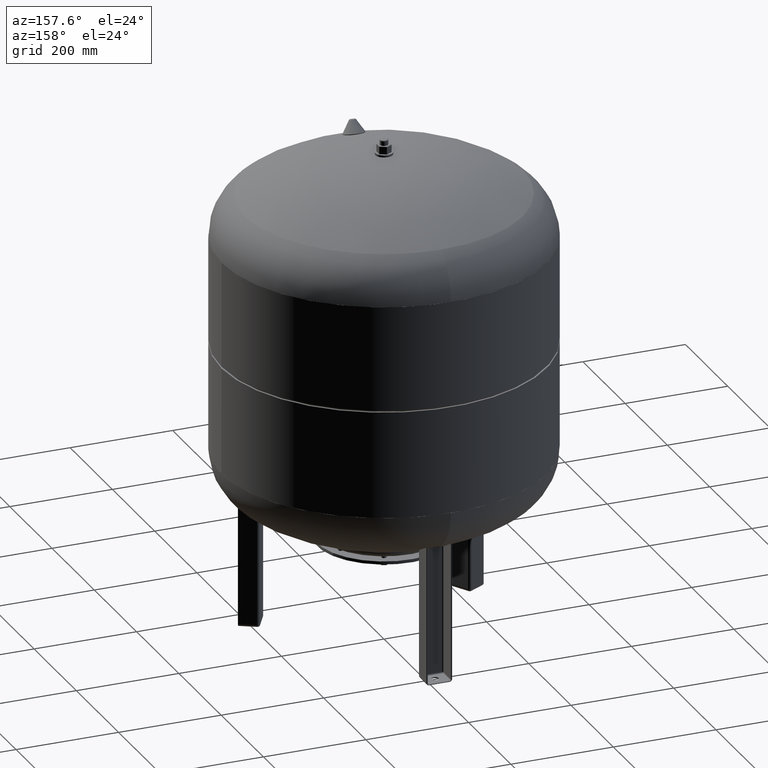
[diagram: clean part render]
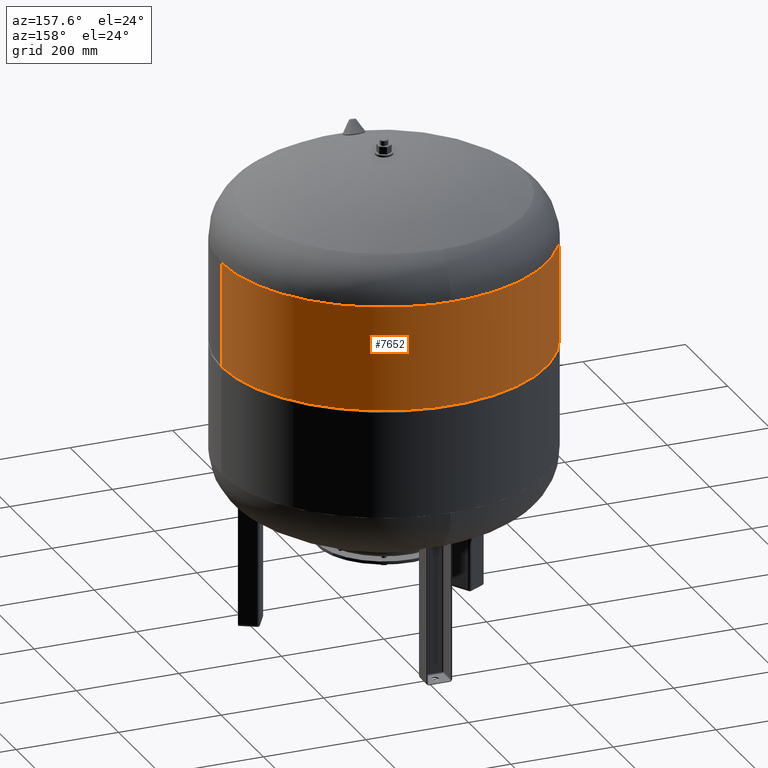
[diagram: same view with one face highlighted and labeled with its STEP entity id]
A machine part, auxiliary view. The second image highlights one B-rep face of the part: STEP entity #7652.
In plain terms, the highlighted cylindrical surface (partial cylindrical patch) has radius 317 mm, axis along (-0, 0, -1).
Its self-contained STEP definition (entity closure, byte-faithful):
#7586=CARTESIAN_POINT('',(316.999999999999830,3.882130E-014,571.500000000000000));
#7587=VERTEX_POINT('',#7586);
#7603=CARTESIAN_POINT('',(-316.999999999999940,-1.282117E-018,571.500000000000000));
#7604=VERTEX_POINT('',#7603);
#7611=CARTESIAN_POINT('',(1.478193E-016,-3.438895E-032,571.500000000000000));
#7612=DIRECTION('',(0.0,0.0,-1.0));
#7613=DIRECTION('',(1.0,0.0,0.0));
#7614=AXIS2_PLACEMENT_3D('',#7611,#7612,#7613);
#7615=CIRCLE('',#7614,316.999999999999830);
#7616=EDGE_CURVE('',#7604,#7587,#7615,.T.);
#7621=CARTESIAN_POINT('',(5.224356E-015,-1.215404E-030,691.700000000000050));
#7622=DIRECTION('',(-4.223408E-017,9.825415E-033,-1.0));
#7623=DIRECTION('',(1.0,0.0,0.0));
#7624=AXIS2_PLACEMENT_3D('',#7621,#7622,#7623);
#7625=CYLINDRICAL_SURFACE('',#7624,316.999999999999940);
#7626=CARTESIAN_POINT('',(317.0,3.882130E-014,776.0));
#7627=VERTEX_POINT('',#7626);
#7628=CARTESIAN_POINT('',(316.999999999999830,3.882130E-014,571.500000000000000));
#7629=DIRECTION('',(0.0,0.0,1.0));
#7630=VECTOR('',#7629,204.500000000000000);
#7631=LINE('',#7628,#7630);
#7632=EDGE_CURVE('',#7587,#7627,#7631,.T.);
#7633=ORIENTED_EDGE('',*,*,#7632,.F.);
#7634=ORIENTED_EDGE('',*,*,#7616,.F.);
#7635=CARTESIAN_POINT('',(-316.999999999999940,-1.282117E-018,776.000000000000110));
#7636=VERTEX_POINT('',#7635);
#7637=CARTESIAN_POINT('',(-316.999999999999940,-1.282117E-018,571.500000000000000));
#7638=DIRECTION('',(0.0,0.0,1.0));
#7639=VECTOR('',#7638,204.500000000000110);
#7640=LINE('',#7637,#7639);
#7641=EDGE_CURVE('',#7604,#7636,#7640,.T.);
#7642=ORIENTED_EDGE('',*,*,#7641,.T.);
#7643=CARTESIAN_POINT('',(8.784689E-015,-2.043686E-030,776.000000000000110));
#7644=DIRECTION('',(0.0,0.0,-1.0));
#7645=DIRECTION('',(1.0,0.0,0.0));
#7646=AXIS2_PLACEMENT_3D('',#7643,#7644,#7645);
#7647=CIRCLE('',#7646,317.0);
#7648=EDGE_CURVE('',#7636,#7627,#7647,.T.);
#7649=ORIENTED_EDGE('',*,*,#7648,.T.);
#7650=EDGE_LOOP('',(#7633,#7634,#7642,#7649));
#7651=FACE_OUTER_BOUND('',#7650,.T.);
#7652=ADVANCED_FACE('',(#7651),#7625,.T.);